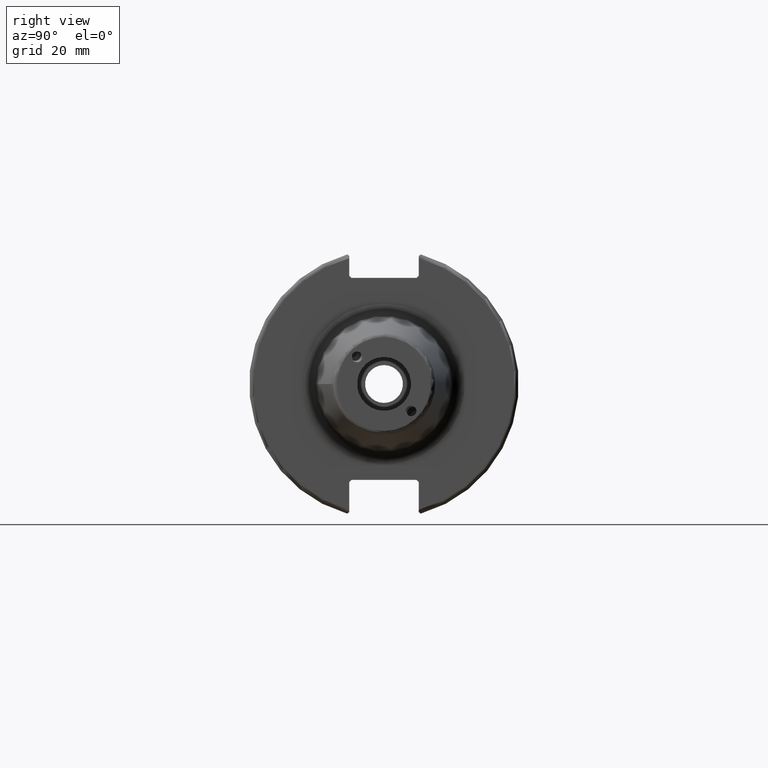
[diagram: clean part render]
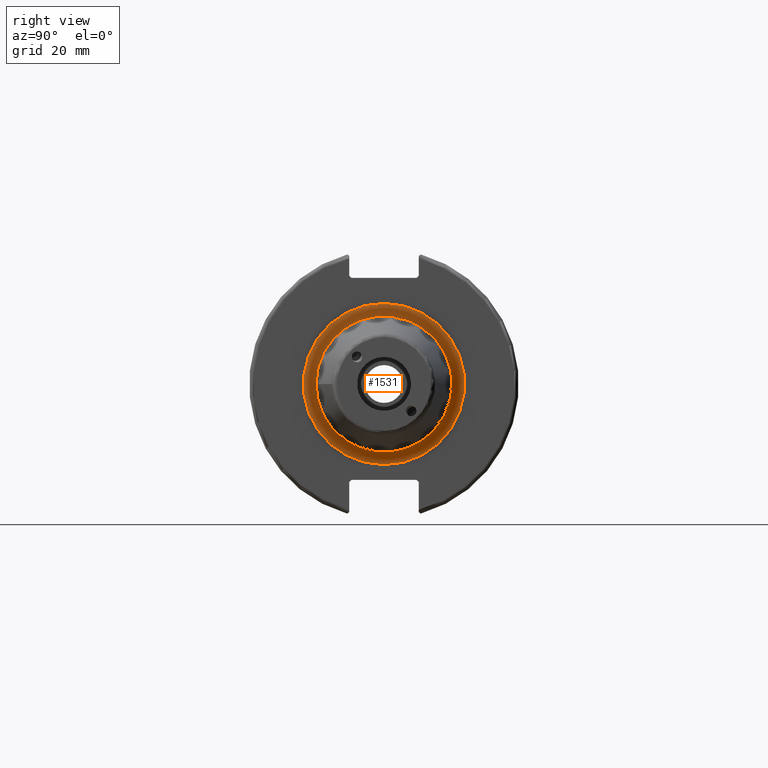
[diagram: same view with one face highlighted and labeled with its STEP entity id]
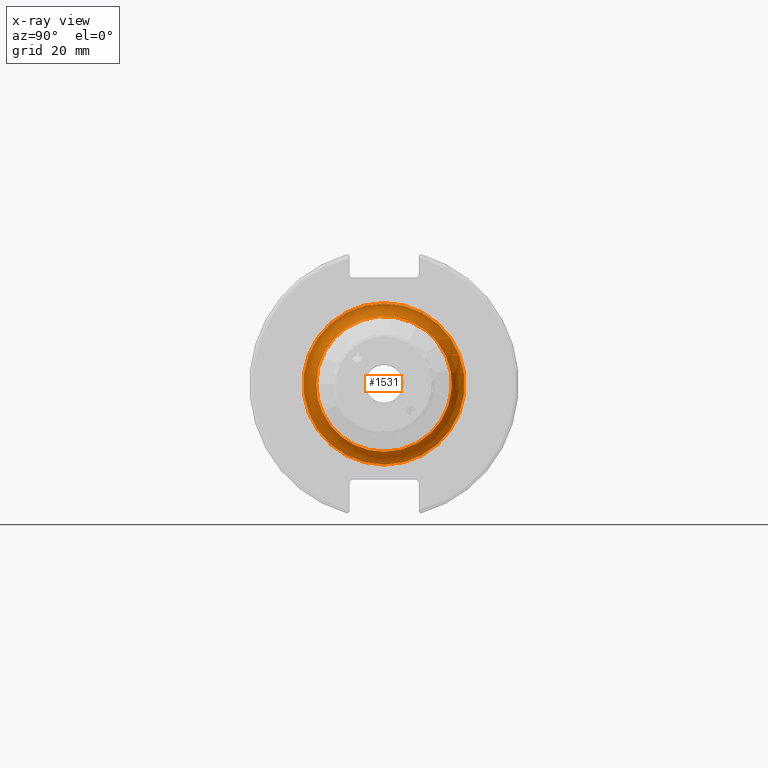
[diagram: x-ray of the same camera — body ghosted, the highlighted face saturated]
A machine part, right view. The second image highlights one B-rep face of the part: STEP entity #1531.
The next image is the same camera in x-ray: the body ghosted, the highlighted face saturated — about 0% of this face is hidden behind the body in this view.
In plain terms, the highlighted toroidal blend (fillet) surface has major radius 19 mm and minor (blend) radius 3 mm.
Its self-contained STEP definition (entity closure, byte-faithful):
#93=TOROIDAL_SURFACE('',#1655,19.,3.);
#146=FACE_OUTER_BOUND('',#240,.T.);
#240=EDGE_LOOP('',(#1043,#1044,#1045,#1046,#1047));
#347=CIRCLE('',#1656,16.);
#348=CIRCLE('',#1657,3.);
#349=CIRCLE('',#1658,19.);
#350=CIRCLE('',#1659,16.);
#635=VERTEX_POINT('',#2325);
#636=VERTEX_POINT('',#2326);
#637=VERTEX_POINT('',#2328);
#795=EDGE_CURVE('',#635,#636,#347,.T.);
#796=EDGE_CURVE('',#636,#637,#348,.T.);
#797=EDGE_CURVE('',#637,#637,#349,.T.);
#798=EDGE_CURVE('',#636,#635,#350,.T.);
#1043=ORIENTED_EDGE('',*,*,#795,.T.);
#1044=ORIENTED_EDGE('',*,*,#796,.T.);
#1045=ORIENTED_EDGE('',*,*,#797,.T.);
#1046=ORIENTED_EDGE('',*,*,#796,.F.);
#1047=ORIENTED_EDGE('',*,*,#798,.T.);
#1531=ADVANCED_FACE('',(#146),#93,.F.);
#1655=AXIS2_PLACEMENT_3D('',#2324,#1863,#1864);
#1656=AXIS2_PLACEMENT_3D('',#2327,#1865,#1866);
#1657=AXIS2_PLACEMENT_3D('',#2329,#1867,#1868);
#1658=AXIS2_PLACEMENT_3D('',#2330,#1869,#1870);
#1659=AXIS2_PLACEMENT_3D('',#2331,#1871,#1872);
#1863=DIRECTION('center_axis',(-1.,0.,0.));
#1864=DIRECTION('ref_axis',(0.,0.,1.));
#1865=DIRECTION('center_axis',(-1.,0.,0.));
#1866=DIRECTION('ref_axis',(0.,-1.,-1.22464679914735E-16));
#1867=DIRECTION('center_axis',(0.,-1.,1.22464679914735E-16));
#1868=DIRECTION('ref_axis',(0.,-1.22464679914735E-16,-1.));
#1869=DIRECTION('center_axis',(1.,0.,0.));
#1870=DIRECTION('ref_axis',(0.,-1.,-1.22464679914735E-16));
#1871=DIRECTION('center_axis',(-1.,0.,0.));
#1872=DIRECTION('ref_axis',(0.,-1.,-1.22464679914735E-16));
#2324=CARTESIAN_POINT('Origin',(22.05,0.,0.));
#2325=CARTESIAN_POINT('',(22.05,-16.,-1.95943487863577E-15));
#2326=CARTESIAN_POINT('',(22.05,-1.95943487863577E-15,-16.));
#2327=CARTESIAN_POINT('Origin',(22.05,0.,0.));
#2328=CARTESIAN_POINT('',(19.05,-2.32682891837997E-15,-19.));
#2329=CARTESIAN_POINT('Origin',(22.05,-2.32682891837997E-15,-19.));
#2330=CARTESIAN_POINT('Origin',(19.05,0.,0.));
#2331=CARTESIAN_POINT('Origin',(22.05,0.,0.));